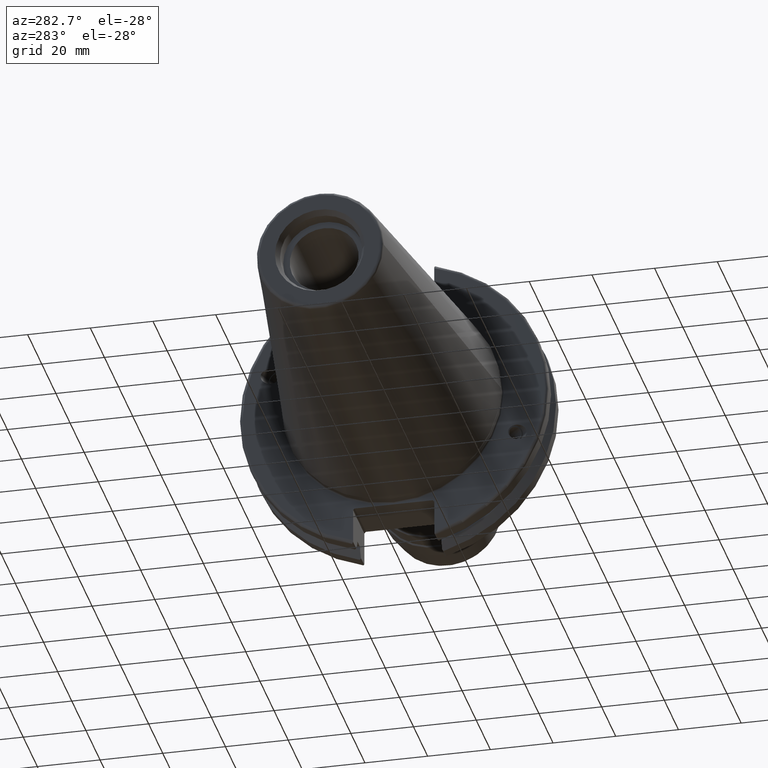
[diagram: clean part render]
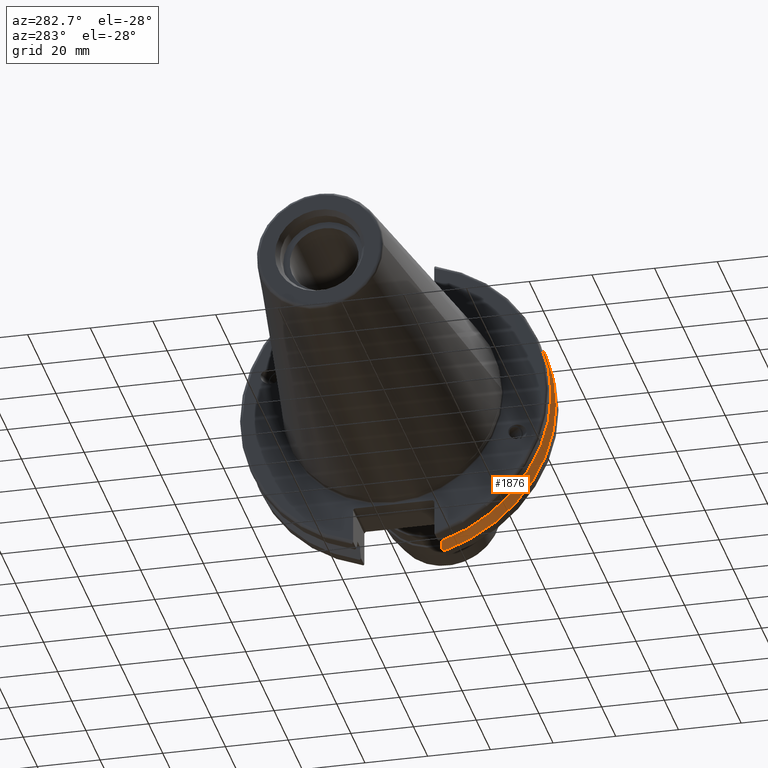
[diagram: same view with one face highlighted and labeled with its STEP entity id]
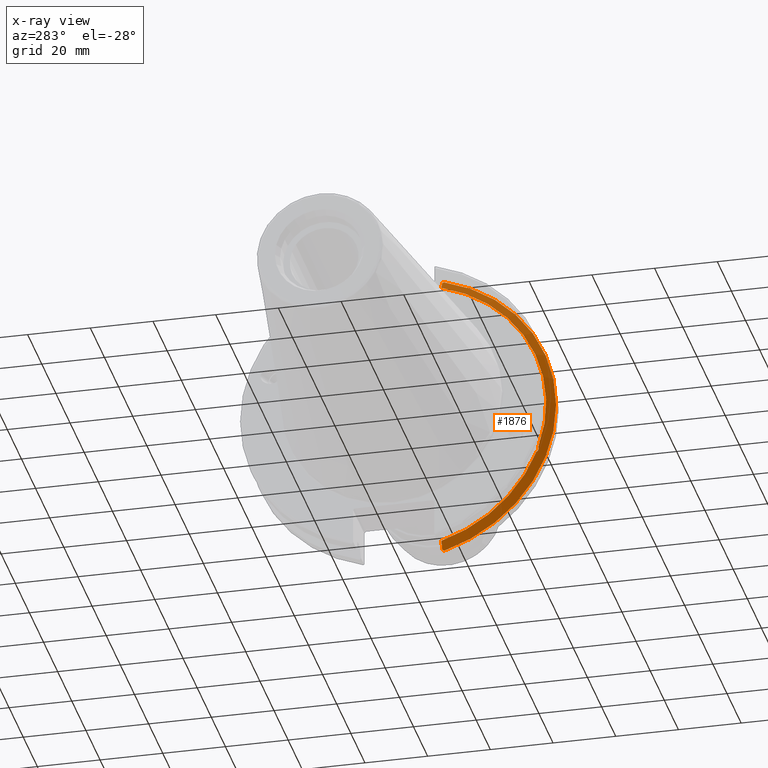
[diagram: x-ray of the same camera — body ghosted, the highlighted face saturated]
A machine part, auxiliary view. The second image highlights one B-rep face of the part: STEP entity #1876.
The next image is the same camera in x-ray: the body ghosted, the highlighted face saturated — about 0% of this face is hidden behind the body in this view.
In plain terms, the highlighted conical surface has half-angle 60 deg.
Its self-contained STEP definition (entity closure, byte-faithful):
#15=(
BOUNDED_CURVE()
B_SPLINE_CURVE(2,(#3272,#3273,#3274),.UNSPECIFIED.,.F.,.F.)
B_SPLINE_CURVE_WITH_KNOTS((3,3),(0.,0.275823910673016),.UNSPECIFIED.)
CURVE()
GEOMETRIC_REPRESENTATION_ITEM()
RATIONAL_B_SPLINE_CURVE((1.,1.00038235574188,1.00012873636688))
REPRESENTATION_ITEM('')
);
#16=(
BOUNDED_CURVE()
B_SPLINE_CURVE(2,(#3276,#3277,#3278),.UNSPECIFIED.,.F.,.F.)
B_SPLINE_CURVE_WITH_KNOTS((3,3),(0.,0.064824047289736),.UNSPECIFIED.)
CURVE()
GEOMETRIC_REPRESENTATION_ITEM()
RATIONAL_B_SPLINE_CURVE((1.,1.00011477674827,1.00019140645933))
REPRESENTATION_ITEM('')
);
#17=(
BOUNDED_CURVE()
B_SPLINE_CURVE(2,(#3282,#3283,#3284),.UNSPECIFIED.,.F.,.F.)
B_SPLINE_CURVE_WITH_KNOTS((3,3),(0.325260944932422,0.390084992222201),
 .UNSPECIFIED.)
CURVE()
GEOMETRIC_REPRESENTATION_ITEM()
RATIONAL_B_SPLINE_CURVE((1.00019140645968,1.00011477674848,1.))
REPRESENTATION_ITEM('')
);
#18=(
BOUNDED_CURVE()
B_SPLINE_CURVE(2,(#3286,#3287,#3288),.UNSPECIFIED.,.F.,.F.)
B_SPLINE_CURVE_WITH_KNOTS((3,3),(0.0558332664513841,0.331657177124504),
 .UNSPECIFIED.)
CURVE()
GEOMETRIC_REPRESENTATION_ITEM()
RATIONAL_B_SPLINE_CURVE((1.0001287363678,1.00038235574463,1.))
REPRESENTATION_ITEM('')
);
#117=B_SPLINE_CURVE_WITH_KNOTS('',3,(#3181,#3182,#3183,#3184,#3185,#3186,
#3187,#3188),.UNSPECIFIED.,.F.,.F.,(4,2,2,4),(0.42671286835872,0.441644498666905,
0.480313313223129,0.518982127779353),.UNSPECIFIED.);
#121=B_SPLINE_CURVE_WITH_KNOTS('',3,(#3243,#3244,#3245,#3246,#3247,#3248,
#3249,#3250),.UNSPECIFIED.,.F.,.F.,(4,2,2,4),(0.518982127779353,0.557650942335576,
0.5963197568918,0.611251387199986),.UNSPECIFIED.);
#156=CONICAL_SURFACE('',#2089,47.8172386482472,1.0471975511966);
#210=FACE_OUTER_BOUND('',#328,.T.);
#328=EDGE_LOOP('',(#1464,#1465,#1466,#1467,#1468,#1469,#1470,#1471,#1472));
#691=CIRCLE('',#2090,46.4219772964944);
#692=CIRCLE('',#2091,49.2125);
#693=CIRCLE('',#2092,46.4219772964944);
#822=VERTEX_POINT('',#3178);
#823=VERTEX_POINT('',#3180);
#830=VERTEX_POINT('',#3241);
#836=VERTEX_POINT('',#3269);
#837=VERTEX_POINT('',#3271);
#838=VERTEX_POINT('',#3275);
#839=VERTEX_POINT('',#3279);
#840=VERTEX_POINT('',#3281);
#841=VERTEX_POINT('',#3285);
#1050=EDGE_CURVE('',#823,#822,#117,.T.);
#1058=EDGE_CURVE('',#822,#830,#121,.T.);
#1066=EDGE_CURVE('',#830,#836,#691,.T.);
#1067=EDGE_CURVE('',#836,#837,#15,.T.);
#1068=EDGE_CURVE('',#838,#837,#16,.T.);
#1069=EDGE_CURVE('',#839,#838,#692,.T.);
#1070=EDGE_CURVE('',#840,#839,#17,.T.);
#1071=EDGE_CURVE('',#840,#841,#18,.T.);
#1072=EDGE_CURVE('',#841,#823,#693,.T.);
#1464=ORIENTED_EDGE('',*,*,#1050,.T.);
#1465=ORIENTED_EDGE('',*,*,#1058,.T.);
#1466=ORIENTED_EDGE('',*,*,#1066,.T.);
#1467=ORIENTED_EDGE('',*,*,#1067,.T.);
#1468=ORIENTED_EDGE('',*,*,#1068,.F.);
#1469=ORIENTED_EDGE('',*,*,#1069,.F.);
#1470=ORIENTED_EDGE('',*,*,#1070,.F.);
#1471=ORIENTED_EDGE('',*,*,#1071,.T.);
#1472=ORIENTED_EDGE('',*,*,#1072,.T.);
#1876=ADVANCED_FACE('',(#210),#156,.T.);
#2089=AXIS2_PLACEMENT_3D('',#3268,#2495,#2496);
#2090=AXIS2_PLACEMENT_3D('',#3270,#2497,#2498);
#2091=AXIS2_PLACEMENT_3D('',#3280,#2499,#2500);
#2092=AXIS2_PLACEMENT_3D('',#3289,#2501,#2502);
#2495=DIRECTION('center_axis',(1.,0.,0.));
#2496=DIRECTION('ref_axis',(0.,-1.,-1.22464679914735E-16));
#2497=DIRECTION('center_axis',(1.,0.,0.));
#2498=DIRECTION('ref_axis',(0.,0.,-1.));
#2499=DIRECTION('center_axis',(1.,0.,0.));
#2500=DIRECTION('ref_axis',(0.,0.,-1.));
#2501=DIRECTION('center_axis',(1.,0.,0.));
#2502=DIRECTION('ref_axis',(0.,0.,-1.));
#3178=CARTESIAN_POINT('',(13.2341,-43.923494649906,-15.9868446375166));
#3180=CARTESIAN_POINT('',(13.0491,-43.9096390749305,-15.0646464421033));
#3181=CARTESIAN_POINT('Ctrl Pts',(13.0491,-43.9096390749305,-15.0646464421033));
#3182=CARTESIAN_POINT('Ctrl Pts',(13.0660815609661,-43.9250360001461,-15.1104047527575));
#3183=CARTESIAN_POINT('Ctrl Pts',(13.0821132459668,-43.9385582852181,-15.1564111356409));
#3184=CARTESIAN_POINT('Ctrl Pts',(13.1358132615496,-43.9797830409459,-15.3217566390708));
#3185=CARTESIAN_POINT('Ctrl Pts',(13.1719838933644,-43.9989016655819,-15.4570249042868));
#3186=CARTESIAN_POINT('Ctrl Pts',(13.2212913174802,-43.9931221605126,-15.7289849146254));
#3187=CARTESIAN_POINT('Ctrl Pts',(13.2341,-43.9675796948952,-15.8657219718732));
#3188=CARTESIAN_POINT('Ctrl Pts',(13.2341,-43.923494649906,-15.9868446375166));
#3241=CARTESIAN_POINT('',(13.0491,-43.3201030900029,-16.6843832486479));
#3243=CARTESIAN_POINT('Ctrl Pts',(13.2341,-43.923494649906,-15.9868446375166));
#3244=CARTESIAN_POINT('Ctrl Pts',(13.2341,-43.8794096049169,-16.10796730316));
#3245=CARTESIAN_POINT('Ctrl Pts',(13.2212913174802,-43.8110833825828,-16.2291323464527));
#3246=CARTESIAN_POINT('Ctrl Pts',(13.1719838933644,-43.6406982153492,-16.441180795372));
#3247=CARTESIAN_POINT('Ctrl Pts',(13.1358132615496,-43.5391037343221,-16.5325130832406));
#3248=CARTESIAN_POINT('Ctrl Pts',(13.0821132459668,-43.4012416983557,-16.6326763251437));
#3249=CARTESIAN_POINT('Ctrl Pts',(13.0660815609661,-43.3613106941341,-16.6592273018006));
#3250=CARTESIAN_POINT('Ctrl Pts',(13.0491,-43.3201030900029,-16.6843832486479));
#3268=CARTESIAN_POINT('Origin',(13.8546545170244,0.,0.));
#3269=CARTESIAN_POINT('',(13.0491,-12.95,-44.5791147973604));
#3270=CARTESIAN_POINT('Origin',(13.0491,0.,0.));
#3271=CARTESIAN_POINT('',(14.3818103943757,-12.95,-46.9780755322917));
#3272=CARTESIAN_POINT('Ctrl Pts',(13.0491,-12.95,-44.5791147973604));
#3273=CARTESIAN_POINT('Ctrl Pts',(13.697995509465,-12.95,-45.7494966802572));
#3274=CARTESIAN_POINT('Ctrl Pts',(14.3818103943757,-12.95,-46.9780755322917));
#3275=CARTESIAN_POINT('',(14.6602090340487,-13.4317035994433,-47.3440544806494));
#3276=CARTESIAN_POINT('Ctrl Pts',(14.6602090340487,-13.4317035994433,-47.3440544806494));
#3277=CARTESIAN_POINT('Ctrl Pts',(14.5199310333618,-13.1896660169966,-47.1601640966265));
#3278=CARTESIAN_POINT('Ctrl Pts',(14.3818103943757,-12.95,-46.9780755322917));
#3279=CARTESIAN_POINT('',(14.6602090340487,-13.4317035994433,47.3440544806494));
#3280=CARTESIAN_POINT('Origin',(14.6602090340487,0.,0.));
#3281=CARTESIAN_POINT('',(14.3818103943757,-12.95,46.9780755322918));
#3282=CARTESIAN_POINT('Ctrl Pts',(14.3818103943757,-12.95,46.9780755322918));
#3283=CARTESIAN_POINT('Ctrl Pts',(14.5199310333618,-13.1896660169966,47.1601640966264));
#3284=CARTESIAN_POINT('Ctrl Pts',(14.6602090340487,-13.4317035994433,47.3440544806494));
#3285=CARTESIAN_POINT('',(13.0491,-12.95,44.5791147973604));
#3286=CARTESIAN_POINT('Ctrl Pts',(14.3818103943757,-12.95,46.9780755322917));
#3287=CARTESIAN_POINT('Ctrl Pts',(13.6979955094656,-12.95,45.7494966802583));
#3288=CARTESIAN_POINT('Ctrl Pts',(13.0491,-12.95,44.5791147973604));
#3289=CARTESIAN_POINT('Origin',(13.0491,0.,0.));